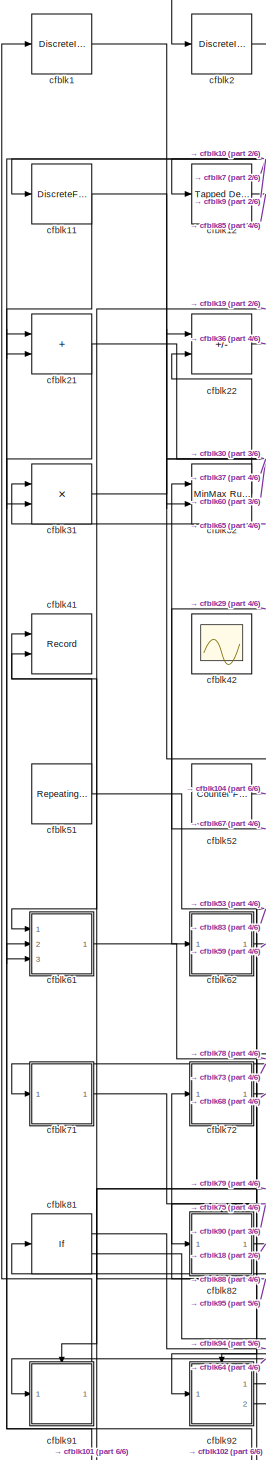
[diagram: root canvas - part 1/6, left side, full height]
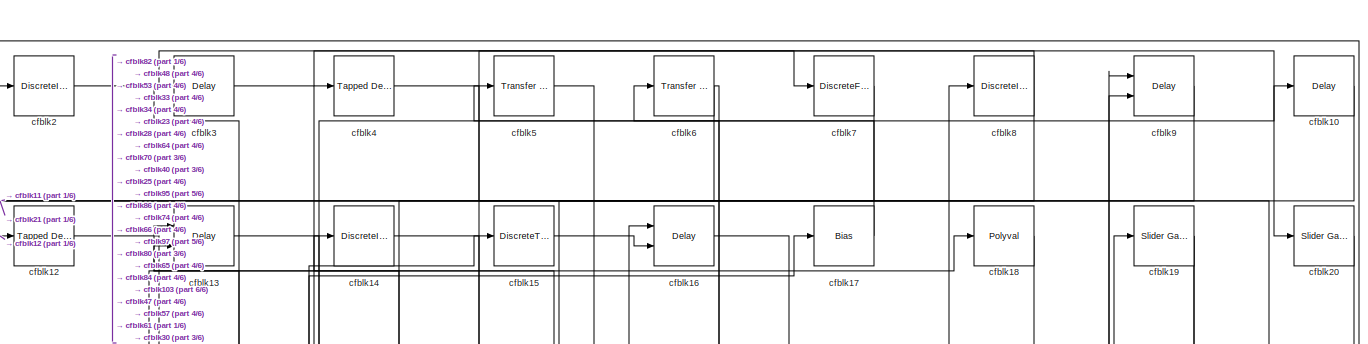
[diagram: root canvas - part 2/6, full width, top band]
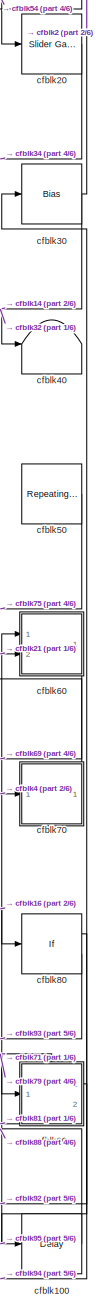
[diagram: root canvas - part 3/6, right side, full height]
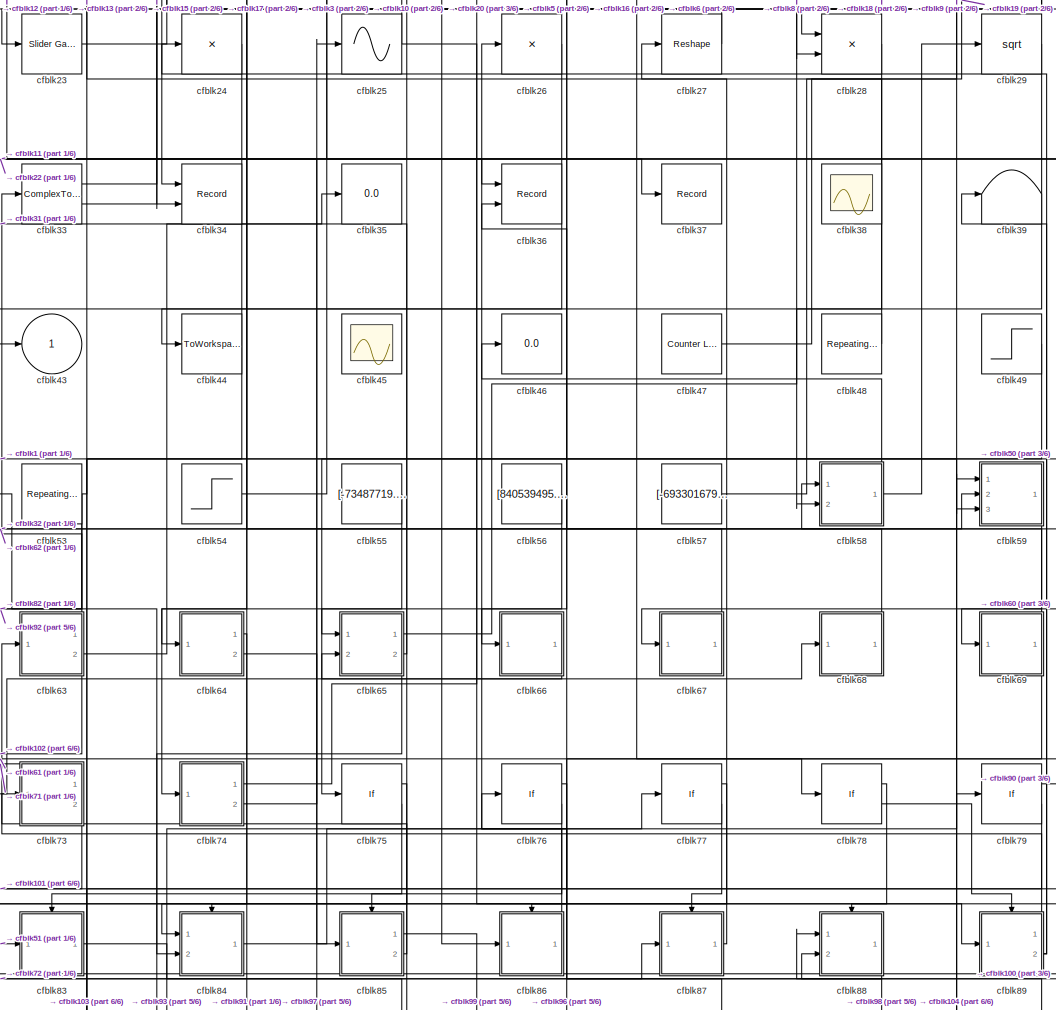
[diagram: root canvas - part 4/6, central region]
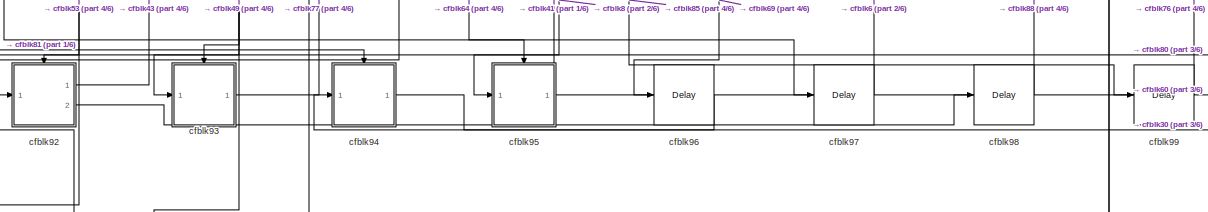
[diagram: root canvas - part 5/6, full width, bottom band]
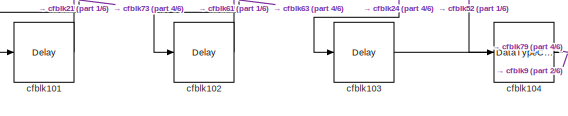
[diagram: root canvas - part 6/6, bottom left region]
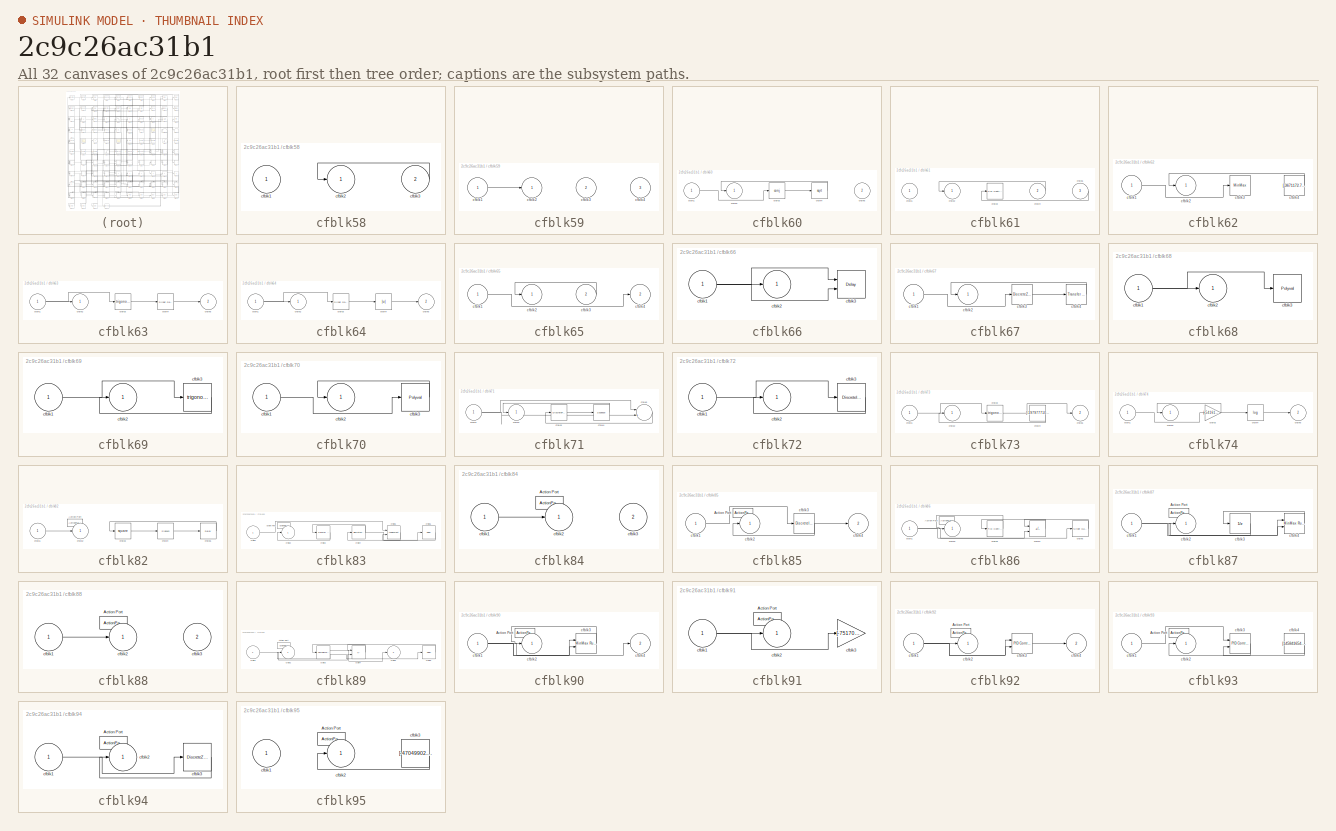
[diagram: thumbnail index - all 32 canvases of the model, root first then tree order]
MODEL slx_2c9c26ac31b1
KIND model
CONFIG AbsTol = auto
CONFIG EnableMultiTasking = off
CONFIG FixedStep = auto
CONFIG MaxStep = auto
CONFIG MinStep = auto
CONFIG RelTol = 1e-3
CONFIG SampleTimeConstraint = Unconstrained
CONFIG SolverName = VariableStepAuto
CONFIG StartTime = 0.0
CONFIG StopTime = 10.0
BLOCK [DiscreteIntegrator] cfblk1
  ICPrevOutput = DiscIntNeverNeededParam
  ICPrevScaledInput = DiscIntNeverNeededParam
  InitialConditionSetting = Auto
  Ports = [1, 1]
BLOCK [Delay] cfblk10
  InputPortMap = u0
  Ports = [1, 1]
  SampleTime = 1
BLOCK [Delay] cfblk100
  InputPortMap = u0
  Ports = [1, 1]
  SampleTime = 1
BLOCK [Delay] cfblk101
  InputPortMap = u0
  Ports = [1, 1]
  SampleTime = 1
BLOCK [Delay] cfblk102
  InputPortMap = u0
  Ports = [1, 1]
  SampleTime = 1
BLOCK [Delay] cfblk103
  InputPortMap = u0
  Ports = [1, 1]
  SampleTime = 1
BLOCK [DataTypeConversion] cfblk104
  RndMeth = Floor
  SaturateOnIntegerOverflow = off
BLOCK [DiscreteFir] cfblk11
  InputPortMap = u0
  OutputPortMap = o0
  Ports = [1, 1]
  SampleTime = 1
BLOCK [Reference] cfblk12  REF=simulink/Discrete/Tapped Delay
  Ports = [1, 1]
  SourceBlock = simulink/Discrete/Tapped Delay
  SourceProductBaseCode = SL
  SourceType = Tapped Delay Line
BLOCK [Delay] cfblk13
  InputPortMap = u0,e6
  Ports = [2, 1]
  SampleTime = 1
  ShowEnablePort = on
BLOCK [DiscreteIntegrator] cfblk14
  ICPrevOutput = DiscIntNeverNeededParam
  ICPrevScaledInput = DiscIntNeverNeededParam
  InitialConditionSetting = Auto
  Ports = [1, 1]
BLOCK [DiscreteTransferFcn] cfblk15
  InputPortMap = u0
  Ports = [1, 1]
  SampleTime = 1
BLOCK [Delay] cfblk16
  InputPortMap = u0,e6
  Ports = [2, 1]
  SampleTime = 1
  ShowEnablePort = on
BLOCK [Bias] cfblk17
  Bias = [886230909.151823]
  SaturateOnIntegerOverflow = off
BLOCK [Polyval] cfblk18
  Coefs = [ +2.081618890e-019, -1.441693666e-014, +4.719686976e-010, -8.536869453e-006, +1.621573104e-001, -8.087801117e+001 ]
BLOCK [Reference] cfblk19  REF=simulink/Math
Operations/Slider
Gain
  Ports = [1, 1]
  SourceBlock = simulink/Math\nOperations/Slider\nGain
  SourceProductBaseCode = SL
  SourceType = Slider Gain
BLOCK [DiscreteIntegrator] cfblk2
  ICPrevOutput = DiscIntNeverNeededParam
  ICPrevScaledInput = DiscIntNeverNeededParam
  InitialConditionSetting = Auto
  Ports = [1, 1]
BLOCK [Reference] cfblk20  REF=simulink/Math
Operations/Slider
Gain
  Ports = [1, 1]
  SourceBlock = simulink/Math\nOperations/Slider\nGain
  SourceProductBaseCode = SL
  SourceType = Slider Gain
BLOCK [Sum] cfblk21
  IconShape = rectangular
  Ports = [2, 1]
BLOCK [Sum] cfblk22
  IconShape = rectangular
  Inputs = +-
  Ports = [2, 1]
BLOCK [Reference] cfblk23  REF=simulink/Math
Operations/Slider
Gain
  Ports = [1, 1]
  SourceBlock = simulink/Math\nOperations/Slider\nGain
  SourceProductBaseCode = SL
  SourceType = Slider Gain
BLOCK [Product] cfblk24
  Inputs = *
  Ports = [1, 1]
BLOCK [Sin] cfblk25
  Ports = [1, 1]
  SampleTime = 0
  TimeSource = Use external signal
BLOCK [Product] cfblk26
  Inputs = *
  Ports = [1, 1]
BLOCK [Reshape] cfblk27
  Ports = [1, 1]
BLOCK [Product] cfblk28
  Inputs = **
  Ports = [2, 1]
BLOCK [Sqrt] cfblk29
BLOCK [Delay] cfblk3
  InputPortMap = u0
  Ports = [1, 1]
  SampleTime = 1
BLOCK [Bias] cfblk30
  Bias = [-412237655.918268]
  SaturateOnIntegerOverflow = off
BLOCK [Product] cfblk31
  Inputs = **
  Ports = [2, 1]
BLOCK [Reference] cfblk32  REF=simulink/Math
Operations/MinMax
Running
Resettable
  Ports = [2, 1]
  SourceBlock = simulink/Math\nOperations/MinMax\nRunning\nResettable
  SourceProductBaseCode = SL
  SourceType = MinMax Running Resettable
BLOCK [ComplexToMagnitudeAngle] cfblk33
  Ports = [1, 2]
BLOCK [Record] cfblk34
  CompatibilityTag = XY
  FileSettingsInternal = {"entries":[{"content":{"excelSettings":{"content":{},"type":"Streamout.ExcelSettings"}},"type":"Streamout.FileSettingStorage","uuid":"0c4fe5c2-4e06-4f9d-937e-dab7eabbd541"}],"packageUris":["http://schema.mathworks.com/mf0/streamout_blocks/R2020a"],"version":"1.0"}
  Layout = [1 1]
  Ports = [2]
  SignalsInternal = {"entries":[{"content":{"signals":[{"content":{"blockPath":["sampleModel272/cfblk34"],"channel":[],"dimensions":[1],"domain":"sampleModel272/cfblk34","lineColor":"#a2142f","plots":[1],"port":1,"sid":[""],"signalID":11313,"signalName":"cfblk3"},"type":"RecordBlkView.Signal","uuid":"582825d7-b222-4042-9fc5-050a24171bf2"},{"content":{"blockPath":["sampleModel272/cfblk34"],"channel":[],"dimensions":[1...<+384ch>
  VisualizationBindings = {"xyplotplugin":{"info":[{"series":[{"bindingParametersList":[{"parameter":"X-Axis","signalID":11313,"signalName":"cfblk3"},{"parameter":"Y-Axis","signalID":11317,"signalName":"cfblk20"}],"seriesID":49566}],"subplotID":1}]}}
BLOCK [Display] cfblk35
  Decimation = 1
  Ports = [1]
BLOCK [Record] cfblk36
  CompatibilityTag = XY
  FileSettingsInternal = {"entries":[{"content":{"excelSettings":{"content":{},"type":"Streamout.ExcelSettings"}},"type":"Streamout.FileSettingStorage","uuid":"e99952ce-eccc-4709-8e11-39aef12f571e"}],"packageUris":["http://schema.mathworks.com/mf0/streamout_blocks/R2020a"],"version":"1.0"}
  Layout = [1 1]
  Ports = [2]
  SignalsInternal = {"entries":[{"content":{"signals":[{"content":{"blockPath":["sampleModel272/cfblk36"],"channel":[],"dimensions":[1],"domain":"sampleModel272/cfblk36","lineColor":"#a2142f","plots":[1],"port":1,"sid":[""],"signalID":11293,"signalName":"cfblk22"},"type":"RecordBlkView.Signal","uuid":"389a9882-db56-409b-bae2-0792bad7a1af"},{"content":{"blockPath":["sampleModel272/cfblk36"],"channel":[],"dimensions":[...<+385ch>
  VisualizationBindings = {"xyplotplugin":{"info":[{"series":[{"bindingParametersList":[{"parameter":"X-Axis","signalID":11293,"signalName":"cfblk22"},{"parameter":"Y-Axis","signalID":11297,"signalName":"cfblk69"}],"seriesID":34702}],"subplotID":1}]}}
BLOCK [Record] cfblk37
  FileSettingsInternal = {"entries":[{"content":{"excelSettings":{"content":{},"type":"Streamout.ExcelSettings"}},"type":"Streamout.FileSettingStorage","uuid":"df2f9316-2949-4e6a-b5f1-9290091e9f5e"}],"packageUris":["http://schema.mathworks.com/mf0/streamout_blocks/R2020a"],"version":"1.0"}
  Ports = [1]
  SignalsInternal = {"entries":[{"content":{"signals":[{"content":{"blockPath":["sampleModel272/cfblk37"],"channel":[],"dimensions":[1],"domain":"sampleModel272/cfblk37","lineColor":"#ff13a6","plots":[1],"port":1,"sid":[""],"signalID":11301,"signalName":"cfblk11"},"type":"RecordBlkView.Signal","uuid":"6510932c-312c-4101-bbf6-69dbfc47c493"}]},"type":"RecordBlkView.InputSignals","uuid":"95ebdce7-5aef-48e1-80c8-d5cd340a...<+98ch>
  VisualizationBindings = {"sparklinesplugin":{"info":[{"bindingParametersList":[],"subplotID":1}]}}
BLOCK [Scope] cfblk38
  Floating = on
  NumInputPorts = 1
  Ports = []
BLOCK [Terminator] cfblk39
BLOCK [Reference] cfblk4  REF=simulink/Discrete/Tapped Delay
  Ports = [1, 1]
  SourceBlock = simulink/Discrete/Tapped Delay
  SourceProductBaseCode = SL
  SourceType = Tapped Delay Line
BLOCK [Terminator] cfblk40
BLOCK [Record] cfblk41
  CompatibilityTag = XY
  FileSettingsInternal = {"entries":[{"content":{"excelSettings":{"content":{},"type":"Streamout.ExcelSettings"}},"type":"Streamout.FileSettingStorage","uuid":"d05200f3-4bf8-43f1-8025-f599cfe7f558"}],"packageUris":["http://schema.mathworks.com/mf0/streamout_blocks/R2020a"],"version":"1.0"}
  Layout = [1 1]
  Ports = [2]
  SignalsInternal = {"entries":[{"content":{"signals":[{"content":{"blockPath":["sampleModel272/cfblk41"],"channel":[],"dimensions":[1],"domain":"sampleModel272/cfblk41","lineColor":"#a2142f","plots":[1],"port":1,"sid":[""],"signalID":11305,"signalName":"cfblk51"},"type":"RecordBlkView.Signal","uuid":"ae742433-c7a0-4431-bb8d-10d0f49611ae"},{"content":{"blockPath":["sampleModel272/cfblk41"],"channel":[],"dimensions":[...<+385ch>
  VisualizationBindings = {"xyplotplugin":{"info":[{"series":[{"bindingParametersList":[{"parameter":"X-Axis","signalID":11305,"signalName":"cfblk51"},{"parameter":"Y-Axis","signalID":11309,"signalName":"cfblk95"}],"seriesID":56533}],"subplotID":1}]}}
BLOCK [Scope] cfblk42
  Floating = on
  NumInputPorts = 1
  Ports = []
BLOCK [Outport] cfblk43
BLOCK [ToWorkspace] cfblk44
  FixptAsFi = on
  MaxDataPoints = inf
  Ports = [1]
  SampleTime = -1
  SaveFormat = Timeseries
  VariableName = pjotqax
BLOCK [Scope] cfblk45
  Floating = on
  NumInputPorts = 1
  Ports = []
BLOCK [Display] cfblk46
  Decimation = 1
  Ports = [1]
BLOCK [Reference] cfblk47  REF=simulink/Sources/Counter
Limited
  Ports = [0, 1]
  SourceBlock = simulink/Sources/Counter\nLimited
  SourceProductBaseCode = SL
  SourceType = Counter Limited
BLOCK [Reference] cfblk48  REF=simulink/Sources/Repeating
Sequence
Interpolated
  Ports = [0, 1]
  SourceBlock = simulink/Sources/Repeating\nSequence\nInterpolated
  SourceProductBaseCode = SL
  SourceType = Repeating Sequence Interpolated
BLOCK [Step] cfblk49
  After = [568569485.083474]
  Before = [-482900987.918856]
  SampleTime = 0
  Time = [1.000000]
BLOCK [Reference] cfblk5  REF=simulink/Discrete/Transfer Fcn
Real Zero
  Ports = [1, 1]
  SourceBlock = simulink/Discrete/Transfer Fcn\nReal Zero
  SourceProductBaseCode = SL
  SourceType = Transfer Fcn Real Zero
BLOCK [Reference] cfblk50  REF=simulink/Sources/Repeating
Sequence
Interpolated
  Ports = [0, 1]
  SourceBlock = simulink/Sources/Repeating\nSequence\nInterpolated
  SourceProductBaseCode = SL
  SourceType = Repeating Sequence Interpolated
BLOCK [Reference] cfblk51  REF=simulink/Sources/Repeating
Sequence
Stair
  Ports = [0, 1]
  SourceBlock = simulink/Sources/Repeating\nSequence\nStair
  SourceProductBaseCode = SL
  SourceType = Repeating Sequence Stair
BLOCK [Reference] cfblk52  REF=simulink/Sources/Counter
Free-Running
  Ports = [0, 1]
  SourceBlock = simulink/Sources/Counter\nFree-Running
  SourceProductBaseCode = SL
  SourceType = Counter Free-Running
BLOCK [Reference] cfblk53  REF=simulink/Sources/Repeating
Sequence
Stair
  Ports = [0, 1]
  SourceBlock = simulink/Sources/Repeating\nSequence\nStair
  SourceProductBaseCode = SL
  SourceType = Repeating Sequence Stair
BLOCK [Step] cfblk54
  After = [-954907969.743222]
  Before = [118413935.850331]
  SampleTime = 0
  Time = [29.000000]
BLOCK [Constant] cfblk55
  SampleTime = 1
  Value = [-73487719.944077]
BLOCK [Constant] cfblk56
  SampleTime = 1
  Value = [840539495.912320]
BLOCK [Constant] cfblk57
  SampleTime = 1
  Value = [-693301679.970904]
BLOCK [SubSystem] cfblk58
  Ports = [2, 1]
  RequestExecContextInheritance = off
BLOCK [Inport] cfblk58/cfblk1
BLOCK [Outport] cfblk58/cfblk2
BLOCK [Inport] cfblk58/cfblk3
  Port = 2
BLOCK [SubSystem] cfblk59
  Ports = [3, 1]
  RequestExecContextInheritance = off
BLOCK [Inport] cfblk59/cfblk1
BLOCK [Outport] cfblk59/cfblk2
BLOCK [Inport] cfblk59/cfblk3
  Port = 2
BLOCK [Inport] cfblk59/cfblk4
  Port = 3
BLOCK [Reference] cfblk6  REF=simulink/Discrete/Transfer Fcn
First Order
  Ports = [1, 1]
  SourceBlock = simulink/Discrete/Transfer Fcn\nFirst Order
  SourceProductBaseCode = SL
  SourceType = First Order Transfer Fcn
BLOCK [SubSystem] cfblk60
  Ports = [2, 1]
  RequestExecContextInheritance = off
BLOCK [Inport] cfblk60/cfblk1
BLOCK [Outport] cfblk60/cfblk2
BLOCK [Math] cfblk60/cfblk3
  Operator = conj
  Ports = [1, 1]
BLOCK [Sqrt] cfblk60/cfblk4
BLOCK [Inport] cfblk60/cfblk5
  Port = 2
BLOCK [SubSystem] cfblk61
  Ports = [3, 1]
  RequestExecContextInheritance = off
BLOCK [Inport] cfblk61/cfblk1
BLOCK [Outport] cfblk61/cfblk2
BLOCK [Reference] cfblk61/cfblk3  REF=slpidlib/PID Controller
  Ports = [1, 1]
  SourceBlock = slpidlib/PID Controller
  SourceProductBaseCode = SL
  SourceType = PID 1dof
BLOCK [Inport] cfblk61/cfblk4
  Port = 2
BLOCK [Inport] cfblk61/cfblk5
  Port = 3
BLOCK [SubSystem] cfblk62
  Ports = [1, 1]
  RequestExecContextInheritance = off
BLOCK [Inport] cfblk62/cfblk1
BLOCK [Outport] cfblk62/cfblk2
BLOCK [MinMax] cfblk62/cfblk3
  Function = max
  Ports = [1, 1]
BLOCK [Constant] cfblk62/cfblk4
  SampleTime = 1
  Value = [-3671172.779738]
BLOCK [SubSystem] cfblk63
  Ports = [1, 2]
  RequestExecContextInheritance = off
BLOCK [Inport] cfblk63/cfblk1
BLOCK [Outport] cfblk63/cfblk2
BLOCK [Trigonometry] cfblk63/cfblk3
  Ports = [1, 1]
BLOCK [Reference] cfblk63/cfblk4  REF=simulink/Math
Operations/Slider
Gain
  Ports = [1, 1]
  SourceBlock = simulink/Math\nOperations/Slider\nGain
  SourceProductBaseCode = SL
  SourceType = Slider Gain
BLOCK [Outport] cfblk63/cfblk5
  Port = 2
BLOCK [SubSystem] cfblk64
  Ports = [1, 2]
  RequestExecContextInheritance = off
BLOCK [Inport] cfblk64/cfblk1
BLOCK [Outport] cfblk64/cfblk2
BLOCK [Reference] cfblk64/cfblk3  REF=simulink/Math
Operations/Slider
Gain
  Ports = [1, 1]
  SourceBlock = simulink/Math\nOperations/Slider\nGain
  SourceProductBaseCode = SL
  SourceType = Slider Gain
BLOCK [Abs] cfblk64/cfblk4
  SaturateOnIntegerOverflow = off
BLOCK [Outport] cfblk64/cfblk5
  Port = 2
BLOCK [SubSystem] cfblk65
  Ports = [2, 2]
  RequestExecContextInheritance = off
BLOCK [Inport] cfblk65/cfblk1
BLOCK [Outport] cfblk65/cfblk2
BLOCK [Inport] cfblk65/cfblk3
  Port = 2
BLOCK [Outport] cfblk65/cfblk4
  Port = 2
BLOCK [SubSystem] cfblk66
  Ports = [1, 1]
  RequestExecContextInheritance = off
BLOCK [Inport] cfblk66/cfblk1
BLOCK [Outport] cfblk66/cfblk2
BLOCK [Delay] cfblk66/cfblk3
  InputPortMap = u0,e6
  Ports = [2, 1]
  SampleTime = 1
  ShowEnablePort = on
BLOCK [SubSystem] cfblk67
  Ports = [1, 1]
  RequestExecContextInheritance = off
BLOCK [Inport] cfblk67/cfblk1
BLOCK [Outport] cfblk67/cfblk2
BLOCK [DiscreteZeroPole] cfblk67/cfblk3
  Gain = 1
  Poles = [0 0.5]
BLOCK [Reference] cfblk67/cfblk4  REF=simulink/Discrete/Transfer Fcn
Lead or Lag
  Ports = [1, 1]
  SourceBlock = simulink/Discrete/Transfer Fcn\nLead or Lag
  SourceProductBaseCode = SL
  SourceType = Lead or Lag Compensator
BLOCK [SubSystem] cfblk68
  Ports = [1, 1]
  RequestExecContextInheritance = off
BLOCK [Inport] cfblk68/cfblk1
BLOCK [Outport] cfblk68/cfblk2
BLOCK [Polyval] cfblk68/cfblk3
  Coefs = [ +2.081618890e-019, -1.441693666e-014, +4.719686976e-010, -8.536869453e-006, +1.621573104e-001, -8.087801117e+001 ]
BLOCK [SubSystem] cfblk69
  Ports = [1, 1]
  RequestExecContextInheritance = off
BLOCK [Inport] cfblk69/cfblk1
BLOCK [Outport] cfblk69/cfblk2
BLOCK [Trigonometry] cfblk69/cfblk3
  Ports = [1, 1]
BLOCK [DiscreteFir] cfblk7
  InputPortMap = u0
  OutputPortMap = o0
  Ports = [1, 1]
  SampleTime = 1
BLOCK [SubSystem] cfblk70
  Ports = [1, 1]
  RequestExecContextInheritance = off
BLOCK [Inport] cfblk70/cfblk1
BLOCK [Outport] cfblk70/cfblk2
BLOCK [Polyval] cfblk70/cfblk3
  Coefs = [ +2.081618890e-019, -1.441693666e-014, +4.719686976e-010, -8.536869453e-006, +1.621573104e-001, -8.087801117e+001 ]
BLOCK [SubSystem] cfblk71
  Ports = [1, 1]
  RequestExecContextInheritance = off
BLOCK [Inport] cfblk71/cfblk1
BLOCK [Outport] cfblk71/cfblk2
BLOCK [DiscreteFilter] cfblk71/cfblk3
  InputPortMap = u0
  Ports = [1, 1]
  SampleTime = 1
BLOCK [Squeeze] cfblk71/cfblk4
BLOCK [Sum] cfblk71/cfblk5
  Inputs = |++
  Ports = [2, 1]
BLOCK [SubSystem] cfblk72
  Ports = [1, 1]
  RequestExecContextInheritance = off
BLOCK [Inport] cfblk72/cfblk1
BLOCK [Outport] cfblk72/cfblk2
BLOCK [DiscreteIntegrator] cfblk72/cfblk3
  ICPrevOutput = DiscIntNeverNeededParam
  ICPrevScaledInput = DiscIntNeverNeededParam
  InitialConditionSetting = Auto
  Ports = [1, 1]
BLOCK [SubSystem] cfblk73
  Ports = [1, 2]
  RequestExecContextInheritance = off
BLOCK [Inport] cfblk73/cfblk1
BLOCK [Outport] cfblk73/cfblk2
BLOCK [Trigonometry] cfblk73/cfblk3
  Ports = [1, 1]
BLOCK [Constant] cfblk73/cfblk4
  SampleTime = 1
  Value = [-197977710.635143]
BLOCK [Outport] cfblk73/cfblk5
  Port = 2
BLOCK [SubSystem] cfblk74
  Ports = [1, 2]
  RequestExecContextInheritance = off
BLOCK [Inport] cfblk74/cfblk1
BLOCK [Outport] cfblk74/cfblk2
BLOCK [Gain] cfblk74/cfblk3
  Gain = [-541615688.915239]
BLOCK [Math] cfblk74/cfblk4
  Operator = log
  Ports = [1, 1]
BLOCK [Outport] cfblk74/cfblk5
  Port = 2
BLOCK [If] cfblk75
  IfExpression = u1 >= 0
  Ports = [1, 2]
  SampleTime = 1
BLOCK [If] cfblk76
  IfExpression = u1 >= 0
  Ports = [1, 2]
  SampleTime = 1
BLOCK [If] cfblk77
  IfExpression = u1 >= 0
  Ports = [1, 2]
  SampleTime = 1
BLOCK [If] cfblk78
  IfExpression = u1 >= 0
  Ports = [1, 2]
  SampleTime = 1
BLOCK [If] cfblk79
  IfExpression = u1 >= 0
  Ports = [1, 2]
  SampleTime = 1
BLOCK [DiscreteIntegrator] cfblk8
  ICPrevOutput = DiscIntNeverNeededParam
  ICPrevScaledInput = DiscIntNeverNeededParam
  InitialConditionSetting = Auto
  Ports = [1, 1]
BLOCK [If] cfblk80
  IfExpression = u1 >= 0
  Ports = [1, 2]
  SampleTime = 1
BLOCK [If] cfblk81
  IfExpression = u1 >= 0
  Ports = [1, 2]
  SampleTime = 1
BLOCK [SubSystem] cfblk82
  Ports = [1, 1, 0, 0, 0, 0, 0, 1]
  RequestExecContextInheritance = off
  TreatAsAtomicUnit = on
BLOCK [ActionPort] cfblk82/Action Port
  ActionPortLabel = if(u1 >= 0)
BLOCK [Inport] cfblk82/cfblk1
BLOCK [Outport] cfblk82/cfblk2
BLOCK [Math] cfblk82/cfblk3
  Operator = square
  Ports = [1, 1]
BLOCK [Signum] cfblk82/cfblk4
BLOCK [Delay] cfblk82/cfblk5
  InputPortMap = u0
  Ports = [1, 1]
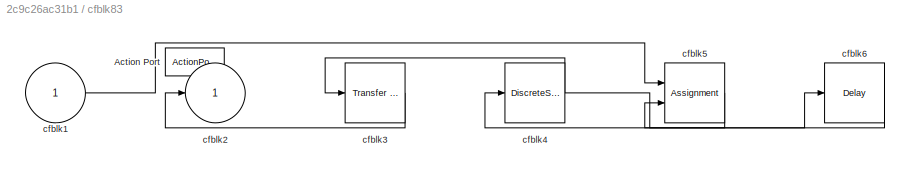
BLOCK [SubSystem] cfblk83
  Ports = [1, 1, 0, 0, 0, 0, 0, 1]
  RequestExecContextInheritance = off
  TreatAsAtomicUnit = on
BLOCK [ActionPort] cfblk83/Action Port
  ActionPortLabel = else
BLOCK [Inport] cfblk83/cfblk1
BLOCK [Outport] cfblk83/cfblk2
BLOCK [Reference] cfblk83/cfblk3  REF=simulink/Discrete/Transfer Fcn
Real Zero
  Ports = [1, 1]
  SourceBlock = simulink/Discrete/Transfer Fcn\nReal Zero
  SourceProductBaseCode = SL
  SourceType = Transfer Fcn Real Zero
BLOCK [DiscreteStateSpace] cfblk83/cfblk4
  SampleTime = -1
BLOCK [Assignment] cfblk83/cfblk5
  DiagnosticForDimensions = Warning
  IndexOptions = Index vector (dialog)
  Indices = 1
  OutputSizes = 1
  Ports = [2, 1]
BLOCK [Delay] cfblk83/cfblk6
  InputPortMap = u0
  Ports = [1, 1]
BLOCK [SubSystem] cfblk84
  Ports = [2, 1, 0, 0, 0, 0, 0, 1]
  RequestExecContextInheritance = off
  TreatAsAtomicUnit = on
BLOCK [ActionPort] cfblk84/Action Port
  ActionPortLabel = if(u1 >= 0)
BLOCK [Inport] cfblk84/cfblk1
BLOCK [Outport] cfblk84/cfblk2
BLOCK [Inport] cfblk84/cfblk3
  Port = 2
BLOCK [SubSystem] cfblk85
  Ports = [1, 2, 0, 0, 0, 0, 0, 1]
  RequestExecContextInheritance = off
  TreatAsAtomicUnit = on
BLOCK [ActionPort] cfblk85/Action Port
  ActionPortLabel = else
BLOCK [Inport] cfblk85/cfblk1
BLOCK [Outport] cfblk85/cfblk2
BLOCK [DiscreteIntegrator] cfblk85/cfblk3
  ICPrevOutput = DiscIntNeverNeededParam
  ICPrevScaledInput = DiscIntNeverNeededParam
  InitialConditionSetting = Auto
  Ports = [1, 1]
  SampleTime = -1
BLOCK [Outport] cfblk85/cfblk4
  Port = 2
BLOCK [SubSystem] cfblk86
  Ports = [1, 1, 0, 0, 0, 0, 0, 1]
  RequestExecContextInheritance = off
  TreatAsAtomicUnit = on
BLOCK [ActionPort] cfblk86/Action Port
  ActionPortLabel = if(u1 >= 0)
BLOCK [Inport] cfblk86/cfblk1
BLOCK [Outport] cfblk86/cfblk2
BLOCK [Reference] cfblk86/cfblk3  REF=slpidlib/PID Controller
  Ports = [1, 1]
  SourceBlock = slpidlib/PID Controller
  SourceProductBaseCode = SL
  SourceType = PID 1dof
BLOCK [Sum] cfblk86/cfblk4
  IconShape = rectangular
  Inputs = --
  Ports = [2, 1]
BLOCK [Reference] cfblk86/cfblk5  REF=simulink/Math
Operations/Slider
Gain
  Ports = [1, 1]
  SourceBlock = simulink/Math\nOperations/Slider\nGain
  SourceProductBaseCode = SL
  SourceType = Slider Gain
BLOCK [SubSystem] cfblk87
  Ports = [1, 1, 0, 0, 0, 0, 0, 1]
  RequestExecContextInheritance = off
  TreatAsAtomicUnit = on
BLOCK [ActionPort] cfblk87/Action Port
  ActionPortLabel = else
BLOCK [Inport] cfblk87/cfblk1
BLOCK [Outport] cfblk87/cfblk2
BLOCK [UnitDelay] cfblk87/cfblk3
  HasFrameUpgradeWarning = on
  SampleTime = -1
BLOCK [Reference] cfblk87/cfblk4  REF=simulink/Math
Operations/MinMax
Running
Resettable
  Ports = [2, 1]
  SourceBlock = simulink/Math\nOperations/MinMax\nRunning\nResettable
  SourceProductBaseCode = SL
  SourceType = MinMax Running Resettable
BLOCK [SubSystem] cfblk88
  Ports = [2, 1, 0, 0, 0, 0, 0, 1]
  RequestExecContextInheritance = off
  TreatAsAtomicUnit = on
BLOCK [ActionPort] cfblk88/Action Port
  ActionPortLabel = if(u1 >= 0)
BLOCK [Inport] cfblk88/cfblk1
BLOCK [Outport] cfblk88/cfblk2
BLOCK [Inport] cfblk88/cfblk3
  Port = 2
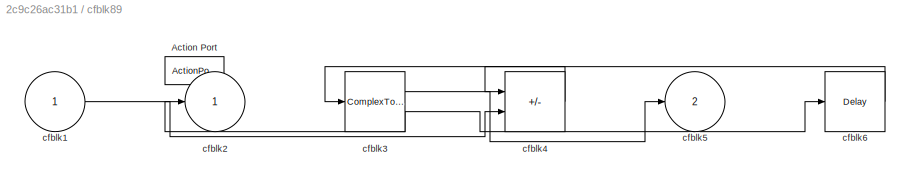
BLOCK [SubSystem] cfblk89
  Ports = [1, 2, 0, 0, 0, 0, 0, 1]
  RequestExecContextInheritance = off
  TreatAsAtomicUnit = on
BLOCK [ActionPort] cfblk89/Action Port
  ActionPortLabel = else
BLOCK [Inport] cfblk89/cfblk1
BLOCK [Outport] cfblk89/cfblk2
BLOCK [ComplexToRealImag] cfblk89/cfblk3
  Ports = [1, 2]
BLOCK [Sum] cfblk89/cfblk4
  IconShape = rectangular
  Inputs = +-
  Ports = [2, 1]
BLOCK [Outport] cfblk89/cfblk5
  Port = 2
BLOCK [Delay] cfblk89/cfblk6
  InputPortMap = u0
  Ports = [1, 1]
BLOCK [Delay] cfblk9
  DelayLengthSource = Input port
  InputPortMap = u0,p1
  Ports = [2, 1]
  SampleTime = 1
BLOCK [SubSystem] cfblk90
  Ports = [1, 2, 0, 0, 0, 0, 0, 1]
  RequestExecContextInheritance = off
  TreatAsAtomicUnit = on
BLOCK [ActionPort] cfblk90/Action Port
  ActionPortLabel = if(u1 >= 0)
BLOCK [Inport] cfblk90/cfblk1
BLOCK [Outport] cfblk90/cfblk2
BLOCK [Reference] cfblk90/cfblk3  REF=simulink/Math
Operations/MinMax
Running
Resettable
  Ports = [2, 1]
  SourceBlock = simulink/Math\nOperations/MinMax\nRunning\nResettable
  SourceProductBaseCode = SL
  SourceType = MinMax Running Resettable
BLOCK [Outport] cfblk90/cfblk4
  Port = 2
BLOCK [SubSystem] cfblk91
  Ports = [1, 1, 0, 0, 0, 0, 0, 1]
  RequestExecContextInheritance = off
  TreatAsAtomicUnit = on
BLOCK [ActionPort] cfblk91/Action Port
  ActionPortLabel = else
BLOCK [Inport] cfblk91/cfblk1
BLOCK [Outport] cfblk91/cfblk2
BLOCK [Gain] cfblk91/cfblk3
  Gain = [-75170097.518094]
BLOCK [SubSystem] cfblk92
  Ports = [1, 2, 0, 0, 0, 0, 0, 1]
  RequestExecContextInheritance = off
  TreatAsAtomicUnit = on
BLOCK [ActionPort] cfblk92/Action Port
  ActionPortLabel = if(u1 >= 0)
BLOCK [Inport] cfblk92/cfblk1
BLOCK [Outport] cfblk92/cfblk2
BLOCK [Reference] cfblk92/cfblk3  REF=slpidlib/PID Controller (2DOF)
  Ports = [2, 1]
  SourceBlock = slpidlib/PID Controller (2DOF)
  SourceProductBaseCode = SL
  SourceType = PID 2dof
BLOCK [Outport] cfblk92/cfblk4
  Port = 2
BLOCK [SubSystem] cfblk93
  Ports = [1, 1, 0, 0, 0, 0, 0, 1]
  RequestExecContextInheritance = off
  TreatAsAtomicUnit = on
BLOCK [ActionPort] cfblk93/Action Port
  ActionPortLabel = else
BLOCK [Inport] cfblk93/cfblk1
BLOCK [Outport] cfblk93/cfblk2
BLOCK [Reference] cfblk93/cfblk3  REF=slpidlib/PID Controller (2DOF)
  Ports = [2, 1]
  SourceBlock = slpidlib/PID Controller (2DOF)
  SourceProductBaseCode = SL
  SourceType = PID 2dof
BLOCK [Constant] cfblk93/cfblk4
  SampleTime = 1
  Value = [145841654.233063]
BLOCK [SubSystem] cfblk94
  Ports = [1, 1, 0, 0, 0, 0, 0, 1]
  RequestExecContextInheritance = off
  TreatAsAtomicUnit = on
BLOCK [ActionPort] cfblk94/Action Port
  ActionPortLabel = if(u1 >= 0)
BLOCK [Inport] cfblk94/cfblk1
BLOCK [Outport] cfblk94/cfblk2
BLOCK [DiscreteZeroPole] cfblk94/cfblk3
  Gain = 1
  Poles = [0 0.5]
  SampleTime = -1
BLOCK [SubSystem] cfblk95
  Ports = [1, 1, 0, 0, 0, 0, 0, 1]
  RequestExecContextInheritance = off
  TreatAsAtomicUnit = on
BLOCK [ActionPort] cfblk95/Action Port
  ActionPortLabel = else
BLOCK [Inport] cfblk95/cfblk1
BLOCK [Outport] cfblk95/cfblk2
BLOCK [Constant] cfblk95/cfblk3
  SampleTime = 1
  Value = [-47049902.789821]
BLOCK [Delay] cfblk96
  InputPortMap = u0
  Ports = [1, 1]
  SampleTime = 1
BLOCK [Delay] cfblk97
  InputPortMap = u0
  Ports = [1, 1]
  SampleTime = 1
BLOCK [Delay] cfblk98
  InputPortMap = u0
  Ports = [1, 1]
  SampleTime = 1
BLOCK [Delay] cfblk99
  InputPortMap = u0
  Ports = [1, 1]
  SampleTime = 1
LINE cfblk100:1 -> cfblk88:1
LINE cfblk101:1 -> cfblk21:1
LINE cfblk102:1 -> cfblk61:2
LINE cfblk103:1 -> cfblk9:1
LINE cfblk104:1 -> cfblk79:1
LINE cfblk10:1 -> cfblk12:1
NET cfblk11:1 -> cfblk31:2, cfblk37:1
LINE cfblk12:1 -> cfblk85:1
LINE cfblk13:1 -> cfblk28:1
LINE cfblk14:1 -> cfblk40:1
LINE cfblk15:1 -> cfblk16:2
LINE cfblk16:1 -> cfblk80:1
LINE cfblk17:1 -> cfblk5:1
LINE cfblk18:1 -> cfblk84:1
NET cfblk19:1 -> cfblk28:2, cfblk61:1
LINE cfblk1:1 -> cfblk59:3
LINE cfblk20:1 -> cfblk34:2
NET cfblk21:1 -> cfblk60:2, cfblk61:3
LINE cfblk22:1 -> cfblk36:1
LINE cfblk23:1 -> cfblk10:1
LINE cfblk24:1 -> cfblk103:1
NET cfblk25:1 -> cfblk13:2, cfblk89:1
LINE cfblk26:1 -> cfblk44:1
LINE cfblk27:1 -> cfblk23:1
LINE cfblk28:1 -> cfblk58:2
LINE cfblk29:1 -> cfblk62:1
LINE cfblk2:1 -> cfblk7:1
NET cfblk30:1 -> cfblk2:1, cfblk32:2
LINE cfblk31:1 -> cfblk22:1
LINE cfblk32:1 -> cfblk22:2
LINE cfblk33:1 -> cfblk17:1
LINE cfblk33:2 -> cfblk15:1
LINE cfblk3:1 -> cfblk34:1
LINE cfblk47:1 -> cfblk9:2
LINE cfblk48:1 -> cfblk3:1
LINE cfblk49:1 -> cfblk93:1
LINE cfblk4:1 -> cfblk70:1
LINE cfblk50:1 -> cfblk75:1
NET cfblk51:1 -> cfblk41:1, cfblk83:1
LINE cfblk52:1 -> cfblk104:1
NET cfblk53:1 -> cfblk13:1, cfblk82:1, cfblk92:1
LINE cfblk54:1 -> cfblk20:1
LINE cfblk55:1 -> cfblk65:1
LINE cfblk56:1 -> cfblk74:1
LINE cfblk57:1 -> cfblk19:1
LINE cfblk58/cfblk3:1 -> cfblk58/cfblk2:1
NET cfblk58:1 -> cfblk29:1, cfblk46:1
LINE cfblk59/cfblk1:1 -> cfblk59/cfblk2:1
LINE cfblk59:1 -> cfblk67:1
LINE cfblk5:1 -> cfblk86:1
LINE cfblk60/cfblk1:1 -> cfblk60/cfblk3:1
LINE cfblk60/cfblk3:1 -> cfblk60/cfblk4:1
LINE cfblk60/cfblk4:1 -> cfblk60/cfblk2:1
LINE cfblk60:1 -> cfblk69:1
LINE cfblk61/cfblk4:1 -> cfblk61/cfblk2:1
LINE cfblk61/cfblk5:1 -> cfblk61/cfblk3:1
LINE cfblk61:1 -> cfblk78:1
LINE cfblk62/cfblk1:1 -> cfblk62/cfblk3:1
LINE cfblk62/cfblk4:1 -> cfblk62/cfblk2:1
LINE cfblk62:1 -> cfblk59:2
NET cfblk63/cfblk1:1 -> cfblk63/cfblk2:1, cfblk63/cfblk3:1
LINE cfblk63/cfblk3:1 -> cfblk63/cfblk4:1
LINE cfblk63/cfblk4:1 -> cfblk63/cfblk5:1
LINE cfblk63:1 -> cfblk33:1
NET cfblk63:2 -> cfblk102:1, cfblk35:1
NET cfblk64/cfblk1:1 -> cfblk64/cfblk2:1, cfblk64/cfblk3:1
LINE cfblk64/cfblk3:1 -> cfblk64/cfblk4:1
LINE cfblk64/cfblk4:1 -> cfblk64/cfblk5:1
LINE cfblk64:1 -> cfblk91:1
LINE cfblk64:2 -> cfblk97:1
LINE cfblk65/cfblk1:1 -> cfblk65/cfblk4:1
LINE cfblk65/cfblk3:1 -> cfblk65/cfblk2:1
LINE cfblk65:1 -> cfblk8:1
NET cfblk65:2 -> cfblk31:1, cfblk84:2
NET cfblk66/cfblk1:1 -> cfblk66/cfblk2:1, cfblk66/cfblk3:1, cfblk66/cfblk3:2
LINE cfblk66:1 -> cfblk65:2
LINE cfblk67/cfblk1:1 -> cfblk67/cfblk3:1
LINE cfblk67/cfblk3:1 -> cfblk67/cfblk4:1
LINE cfblk67/cfblk4:1 -> cfblk67/cfblk2:1
LINE cfblk67:1 -> cfblk32:1
NET cfblk68/cfblk1:1 -> cfblk68/cfblk2:1, cfblk68/cfblk3:1
LINE cfblk68:1 -> cfblk58:1
LINE cfblk69/cfblk1:1 -> cfblk69/cfblk3:1
LINE cfblk69/cfblk3:1 -> cfblk69/cfblk2:1
NET cfblk69:1 -> cfblk36:2, cfblk96:1
NET cfblk6:1 -> cfblk64:1, cfblk66:1
LINE cfblk70/cfblk1:1 -> cfblk70/cfblk3:1
LINE cfblk70/cfblk3:1 -> cfblk70/cfblk2:1
LINE cfblk70:1 -> cfblk14:1
NET cfblk71/cfblk1:1 -> cfblk71/cfblk5:1, cfblk71/cfblk5:2
LINE cfblk71/cfblk3:1 -> cfblk71/cfblk4:1
LINE cfblk71/cfblk4:1 -> cfblk71/cfblk2:1
LINE cfblk71/cfblk5:1 -> cfblk71/cfblk3:1
LINE cfblk71:1 -> cfblk90:1
LINE cfblk72/cfblk1:1 -> cfblk72/cfblk3:1
LINE cfblk72/cfblk3:1 -> cfblk72/cfblk2:1
LINE cfblk72:1 -> cfblk68:1
LINE cfblk73/cfblk1:1 -> cfblk73/cfblk3:1
LINE cfblk73/cfblk3:1 -> cfblk73/cfblk5:1
LINE cfblk73/cfblk4:1 -> cfblk73/cfblk2:1
LINE cfblk73:1 -> cfblk71:1
LINE cfblk73:2 -> cfblk101:1
LINE cfblk74/cfblk1:1 -> cfblk74/cfblk3:1
NET cfblk74/cfblk3:1 -> cfblk74/cfblk2:1, cfblk74/cfblk4:1
LINE cfblk74/cfblk4:1 -> cfblk74/cfblk5:1
LINE cfblk74:1 -> cfblk16:1
LINE cfblk74:2 -> cfblk25:1
LINE cfblk75:1 -> cfblk82:ifaction
LINE cfblk75:2 -> cfblk83:ifaction
LINE cfblk76:1 -> cfblk84:ifaction
LINE cfblk76:2 -> cfblk85:ifaction
LINE cfblk77:1 -> cfblk86:ifaction
LINE cfblk77:2 -> cfblk87:ifaction
LINE cfblk78:1 -> cfblk88:ifaction
LINE cfblk78:2 -> cfblk89:ifaction
LINE cfblk79:1 -> cfblk90:ifaction
LINE cfblk79:2 -> cfblk91:ifaction
LINE cfblk7:1 -> cfblk11:1
LINE cfblk80:1 -> cfblk92:ifaction
LINE cfblk80:2 -> cfblk93:ifaction
LINE cfblk81:1 -> cfblk94:ifaction
LINE cfblk81:2 -> cfblk95:ifaction
LINE cfblk82/cfblk1:1 -> cfblk82/cfblk2:1
LINE cfblk82/cfblk3:1 -> cfblk82/cfblk4:1
LINE cfblk82/cfblk4:1 -> cfblk82/cfblk5:1
LINE cfblk82/cfblk5:1 -> cfblk82/cfblk3:1
LINE cfblk82:1 -> cfblk18:1
LINE cfblk83/cfblk1:1 -> cfblk83/cfblk5:1
LINE cfblk83/cfblk3:1 -> cfblk83/cfblk2:1
NET cfblk83/cfblk4:1 -> cfblk83/cfblk3:1, cfblk83/cfblk6:1
LINE cfblk83/cfblk5:1 -> cfblk83/cfblk4:1
LINE cfblk83/cfblk6:1 -> cfblk83/cfblk5:2
LINE cfblk83:1 -> cfblk87:1
LINE cfblk84/cfblk1:1 -> cfblk84/cfblk2:1
LINE cfblk84:1 -> cfblk59:1
LINE cfblk85/cfblk1:1 -> cfblk85/cfblk3:1
NET cfblk85/cfblk3:1 -> cfblk85/cfblk2:1, cfblk85/cfblk4:1
LINE cfblk85:1 -> cfblk99:1
LINE cfblk85:2 -> cfblk73:1
NET cfblk86/cfblk1:1 -> cfblk86/cfblk4:2, cfblk86/cfblk5:1
LINE cfblk86/cfblk3:1 -> cfblk86/cfblk2:1
LINE cfblk86/cfblk4:1 -> cfblk86/cfblk3:1
LINE cfblk86/cfblk5:1 -> cfblk86/cfblk4:1
LINE cfblk86:1 -> cfblk26:1
NET cfblk87/cfblk1:1 -> cfblk87/cfblk4:1, cfblk87/cfblk4:2
LINE cfblk87/cfblk3:1 -> cfblk87/cfblk2:1
LINE cfblk87/cfblk4:1 -> cfblk87/cfblk3:1
LINE cfblk87:1 -> cfblk27:1
LINE cfblk88/cfblk1:1 -> cfblk88/cfblk2:1
LINE cfblk88:1 -> cfblk72:1
LINE cfblk89/cfblk1:1 -> cfblk89/cfblk4:2
LINE cfblk89/cfblk3:1 -> cfblk89/cfblk5:1
NET cfblk89/cfblk3:2 -> cfblk89/cfblk2:1, cfblk89/cfblk6:1
LINE cfblk89/cfblk4:1 -> cfblk89/cfblk3:1
LINE cfblk89/cfblk6:1 -> cfblk89/cfblk4:1
LINE cfblk89:1 -> cfblk63:1
NET cfblk89:2 -> cfblk24:1, cfblk39:1
NET cfblk8:1 -> cfblk4:1, cfblk95:1
NET cfblk90/cfblk1:1 -> cfblk90/cfblk3:1, cfblk90/cfblk3:2, cfblk90/cfblk4:1
LINE cfblk90/cfblk3:1 -> cfblk90/cfblk2:1
LINE cfblk90:1 -> cfblk100:1
LINE cfblk90:2 -> cfblk81:1
NET cfblk91/cfblk1:1 -> cfblk91/cfblk2:1, cfblk91/cfblk3:1
LINE cfblk91:1 -> cfblk1:1
NET cfblk92/cfblk1:1 -> cfblk92/cfblk2:1, cfblk92/cfblk3:1, cfblk92/cfblk3:2
LINE cfblk92/cfblk3:1 -> cfblk92/cfblk4:1
LINE cfblk92:1 -> cfblk43:1
LINE cfblk92:2 -> cfblk98:1
LINE cfblk93/cfblk1:1 -> cfblk93/cfblk3:1
LINE cfblk93/cfblk3:1 -> cfblk93/cfblk2:1
LINE cfblk93/cfblk4:1 -> cfblk93/cfblk3:2
LINE cfblk93:1 -> cfblk77:1
LINE cfblk94/cfblk1:1 -> cfblk94/cfblk3:1
LINE cfblk94/cfblk3:1 -> cfblk94/cfblk2:1
LINE cfblk94:1 -> cfblk30:1
LINE cfblk95/cfblk3:1 -> cfblk95/cfblk2:1
NET cfblk95:1 -> cfblk41:2, cfblk60:1
LINE cfblk96:1 -> cfblk94:1
LINE cfblk97:1 -> cfblk6:1
LINE cfblk98:1 -> cfblk88:2
LINE cfblk99:1 -> cfblk76:1
LINE cfblk9:1 -> cfblk21:2
note: NET lines group one-source signal fan-out (src -> all destinations, sorted); 1:1 wires keep LINE
